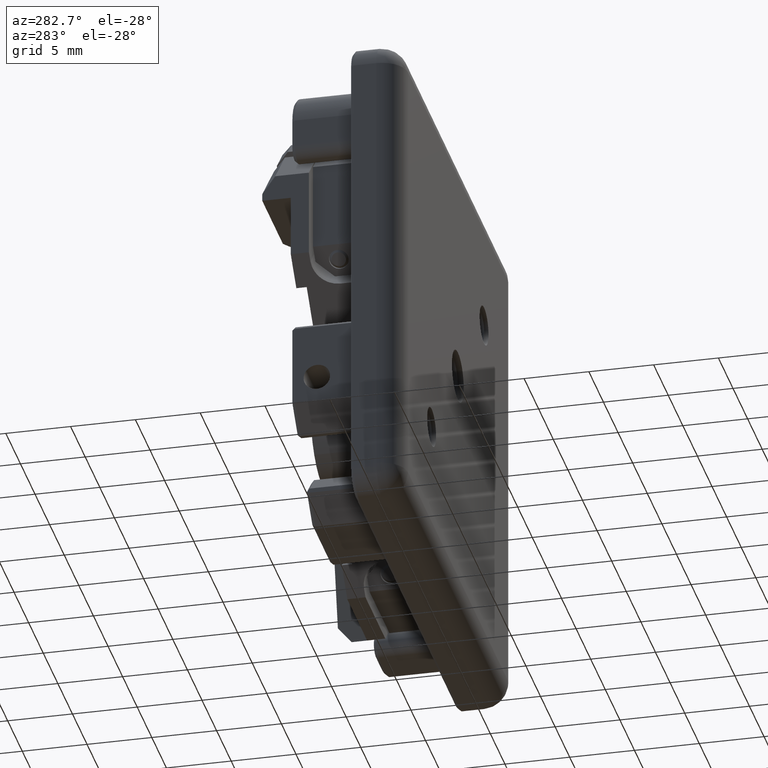
[diagram: clean part render]
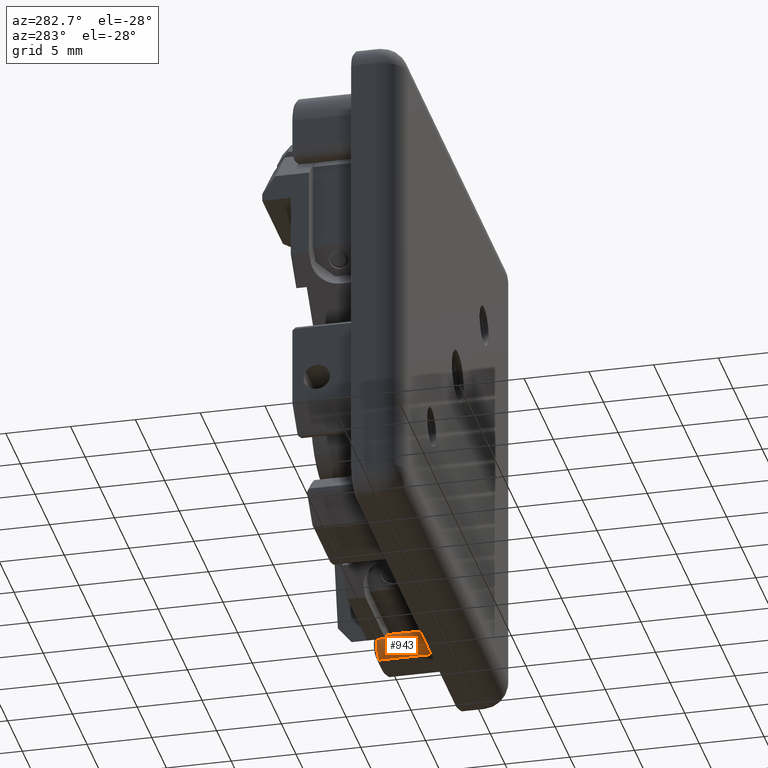
[diagram: same view with one face highlighted and labeled with its STEP entity id]
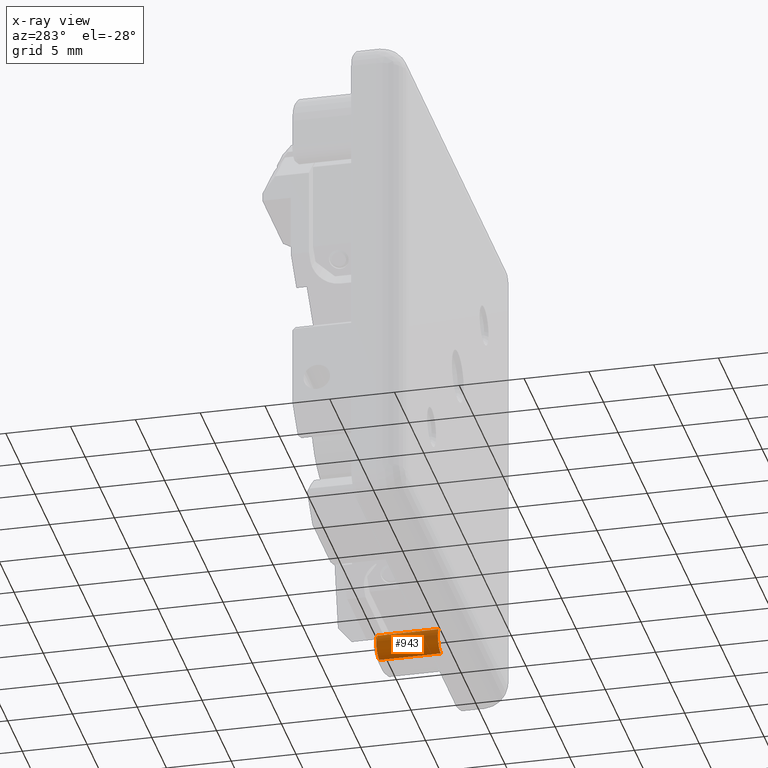
[diagram: x-ray of the same camera — body ghosted, the highlighted face saturated]
A machine part, auxiliary view. The second image highlights one B-rep face of the part: STEP entity #943.
The next image is the same camera in x-ray: the body ghosted, the highlighted face saturated — about 10% of this face is hidden behind the body in this view.
In plain terms, the highlighted cylindrical surface (edge-blend (fillet) strip) has radius 1 mm, axis along (-0, 1, 0).
Its self-contained STEP definition (entity closure, byte-faithful):
#43 = CARTESIAN_POINT ( 'NONE',  ( 11.20710678118654435, 2.000000000000001776, -15.29289321881345209 ) ) ;
#51 = FACE_OUTER_BOUND ( 'NONE', #7657, .T. ) ;
#441 = VERTEX_POINT ( 'NONE', #43 ) ;
#684 = DIRECTION ( 'NONE',  ( 0.000000000000000000, 0.000000000000000000, 1.000000000000000000 ) ) ;
#720 = CARTESIAN_POINT ( 'NONE',  ( 11.91421356237309226, 7.000000000000000000, -16.99999999999999645 ) ) ;
#870 = CARTESIAN_POINT ( 'NONE',  ( 11.91421356237309226, 2.000000000000000000, -16.99999999999999645 ) ) ;
#943 = ADVANCED_FACE ( 'NONE', ( #51 ), #10453, .T. ) ;
#985 = ORIENTED_EDGE ( 'NONE', *, *, #4531, .T. ) ;
#1015 = CARTESIAN_POINT ( 'NONE',  ( 11.91421356237309226, 2.000000000000000000, -15.99999999999999645 ) ) ;
#1250 = CARTESIAN_POINT ( 'NONE',  ( 11.20710678118654435, -26.99137802864852276, -15.29289321881345209 ) ) ;
#1555 = DIRECTION ( 'NONE',  ( -0.000000000000000000, 1.000000000000000000, 0.000000000000000000 ) ) ;
#2284 = DIRECTION ( 'NONE',  ( -0.000000000000000000, -1.000000000000000000, -0.000000000000000000 ) ) ;
#2365 = CARTESIAN_POINT ( 'NONE',  ( 11.91421356237309226, 6.750000000000000000, -16.99999999999999645 ) ) ;
#3070 = VERTEX_POINT ( 'NONE', #3329 ) ;
#3329 = CARTESIAN_POINT ( 'NONE',  ( 11.20710678118654435, 6.749999999999999112, -15.29289321881345209 ) ) ;
#3574 = CARTESIAN_POINT ( 'NONE',  ( 11.91421356237309226, 7.000000000000000000, -15.99999999999999645 ) ) ;
#3852 = CARTESIAN_POINT ( 'NONE',  ( 11.91421356237309226, 6.750000000000000000, -15.99999999999999645 ) ) ;
#4531 = EDGE_CURVE ( 'NONE', #3070, #4606, #10573, .T. ) ;
#4606 = VERTEX_POINT ( 'NONE', #2365 ) ;
#4906 = VERTEX_POINT ( 'NONE', #870 ) ;
#5168 = EDGE_CURVE ( 'NONE', #441, #4906, #9784, .T. ) ;
#5496 = DIRECTION ( 'NONE',  ( -0.000000000000000000, -1.000000000000000000, -0.000000000000000000 ) ) ;
#5898 = AXIS2_PLACEMENT_3D ( 'NONE', #3852, #10298, #5908 ) ;
#5908 = DIRECTION ( 'NONE',  ( 1.734723475976805517E-15, 0.000000000000000000, 1.000000000000000000 ) ) ;
#6305 = AXIS2_PLACEMENT_3D ( 'NONE', #3574, #1555, #684 ) ;
#6413 = DIRECTION ( 'NONE',  ( 1.734723475976805517E-15, 0.000000000000000000, 1.000000000000000000 ) ) ;
#7292 = VECTOR ( 'NONE', #2284, 1000.000000000000000 ) ;
#7305 = ORIENTED_EDGE ( 'NONE', *, *, #5168, .F. ) ;
#7380 = VECTOR ( 'NONE', #11676, 1000.000000000000000 ) ;
#7657 = EDGE_LOOP ( 'NONE', ( #10837, #985, #8554, #7305 ) ) ;
#8148 = LINE ( 'NONE', #1250, #7292 ) ;
#8554 = ORIENTED_EDGE ( 'NONE', *, *, #9960, .F. ) ;
#8961 = LINE ( 'NONE', #720, #7380 ) ;
#8962 = EDGE_CURVE ( 'NONE', #3070, #441, #8148, .T. ) ;
#9784 = CIRCLE ( 'NONE', #10034, 1.000000000000000888 ) ;
#9960 = EDGE_CURVE ( 'NONE', #4906, #4606, #8961, .T. ) ;
#10034 = AXIS2_PLACEMENT_3D ( 'NONE', #1015, #5496, #6413 ) ;
#10298 = DIRECTION ( 'NONE',  ( 0.000000000000000000, -1.000000000000000000, 0.000000000000000000 ) ) ;
#10453 = CYLINDRICAL_SURFACE ( 'NONE', #6305, 1.000000000000000888 ) ;
#10573 = CIRCLE ( 'NONE', #5898, 1.000000000000000888 ) ;
#10837 = ORIENTED_EDGE ( 'NONE', *, *, #8962, .F. ) ;
#11676 = DIRECTION ( 'NONE',  ( -0.000000000000000000, 1.000000000000000000, 0.000000000000000000 ) ) ;